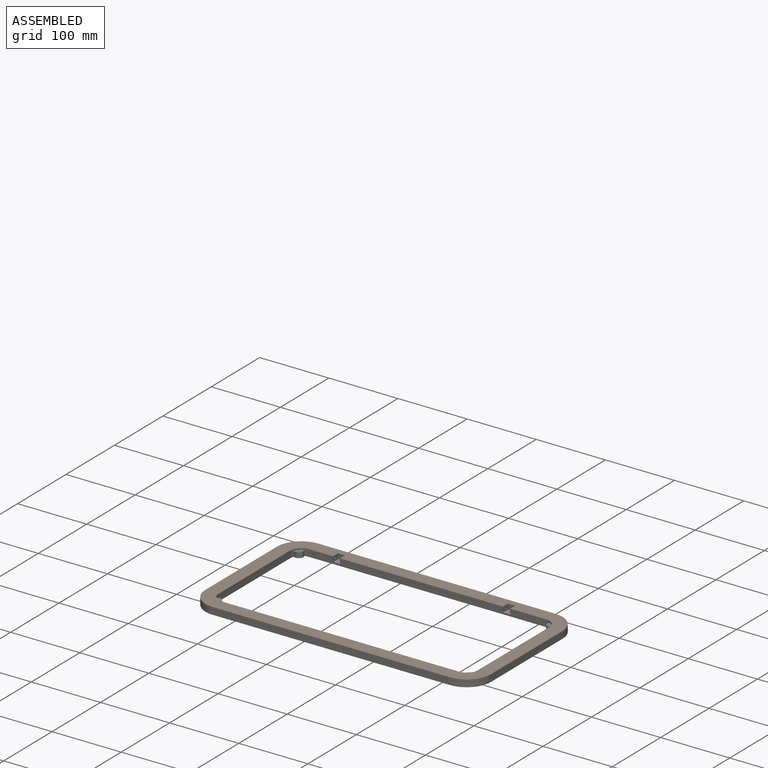
[diagram: assembled view]
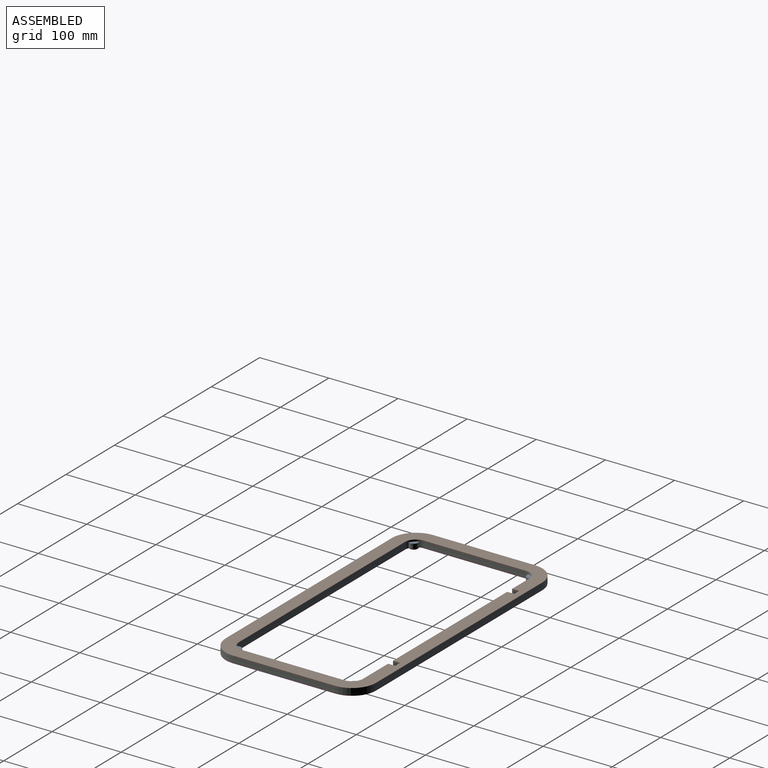
[diagram: assembled view, second angle]
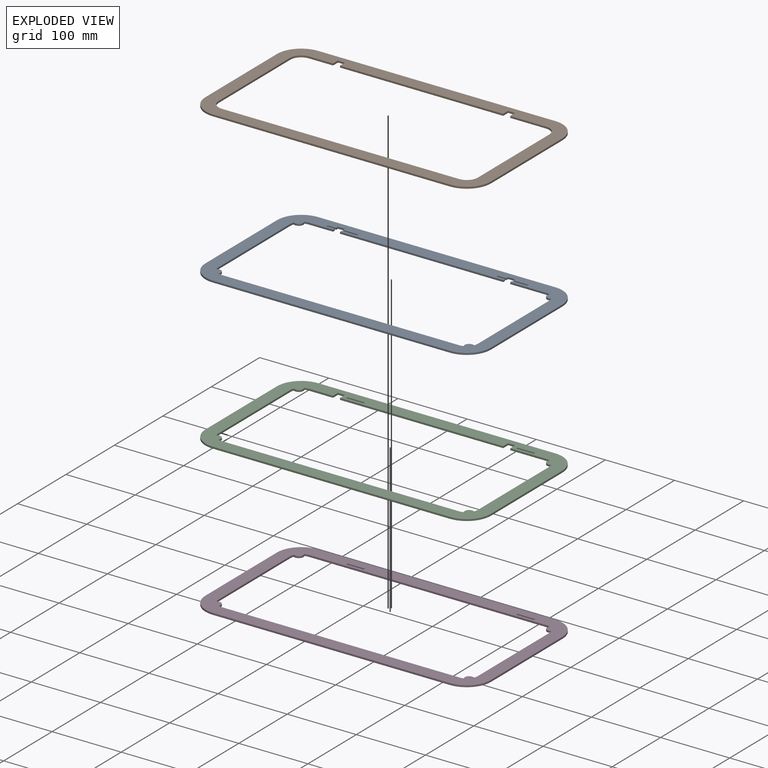
[diagram: exploded view]
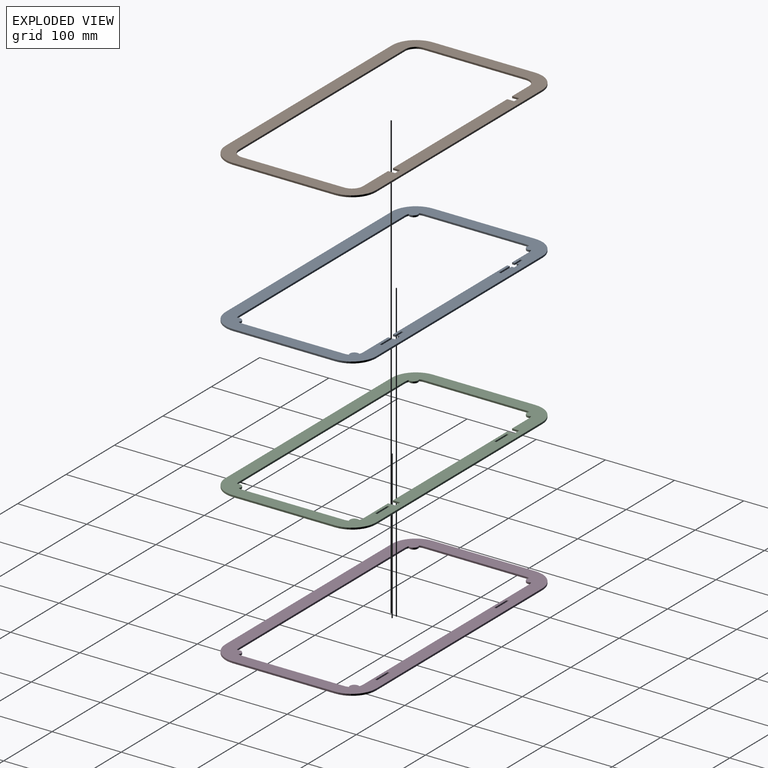
[diagram: exploded view, second angle]
ASSEMBLY  parts=4 mates=3
PART A: 50 faces, bbox 412.8x217.5x2.5 mm
  f0: plane 412.75x217.49mm, normal (0,0,-1), area 21563.4mm2, adj f2,f3,f4,f5,f6,f7,f8,f9
  f1: plane 412.75x217.49mm, normal (0,0,1), area 21563.4mm2, adj f2,f3,f4,f5,f6,f7,f8,f9
  f2: plane 3.68x2.54mm, normal (-1,0,0), area 9.4mm2, adj f0,f1,f12,f47
  f3: plane 3.68x2.54mm, normal (1,0,0), area 9.4mm2, adj f0,f1,f11,f45
  f4: plane 3.68x2.54mm, normal (-1,0,0), area 9.4mm2, adj f0,f1,f11,f41
  f5: plane 3.68x2.54mm, normal (1,0,0), area 9.4mm2, adj f0,f1,f10,f39
  f6: cylinder r=15.88mm len=5.93mm, axis (0,0,-1), area 15.4mm2, adj f0,f1,f16,f37
  f7: cylinder r=15.88mm len=5.93mm, axis (0,0,-1), area 15.4mm2, adj f0,f1,f14,f36
  f8: cylinder r=15.88mm len=5.93mm, axis (0,0,-1), area 15.4mm2, adj f0,f1,f12,f35
  f9: cylinder r=15.88mm len=5.93mm, axis (0,0,-1), area 15.4mm2, adj f0,f1,f18,f34
  f10: plane 34.93x2.54mm, normal (0,-1,0), area 88.7mm2, adj f0,f1,f5,f27
  f11: plane 235.9x2.54mm, normal (0,-1,0), area 599.2mm2, adj f0,f1,f3,f4
  f12: plane 51.75x2.54mm, normal (0,-1,0), area 131.5mm2, adj f0,f1,f2,f8
  f13: cylinder r=15.88mm len=5.93mm, axis (0,0,-1), area 15.4mm2, adj f0,f1,f14,f35
  f14: plane 147.64x2.54mm, normal (-1,0,0), area 375mm2, adj f0,f1,f7,f13
  f15: cylinder r=15.88mm len=5.93mm, axis (0,0,-1), area 15.4mm2, adj f0,f1,f16,f36
  f16: plane 342.9x2.54mm, normal (0,1,0), area 871mm2, adj f0,f1,f6,f15
  f17: cylinder r=15.88mm len=5.93mm, axis (0,0,-1), area 15.4mm2, adj f0,f1,f18,f37
  f18: plane 147.64x2.54mm, normal (1,0,0), area 375mm2, adj f0,f1,f9,f17
  f19: plane 342.9x2.54mm, normal (0,-1,0), area 871mm2, adj f0,f1,f20,f26
  f20: cylinder r=34.92mm len=34.93mm, axis (0,0,-1), area 139.3mm2, adj f0,f1,f19,f21
  f21: plane 147.64x2.54mm, normal (1,0,0), area 375mm2, adj f0,f1,f20,f22
  f22: cylinder r=34.92mm len=34.93mm, axis (0,0,-1), area 139.3mm2, adj f0,f1,f21,f23
  f23: plane 342.9x2.54mm, normal (0,1,0), area 871mm2, adj f0,f1,f22,f24
  f24: cylinder r=34.92mm len=34.93mm, axis (0,0,-1), area 139.3mm2, adj f0,f1,f23,f25
  f25: plane 147.64x2.54mm, normal (-1,0,0), area 375mm2, adj f0,f1,f24,f26
  f26: cylinder r=34.92mm len=34.93mm, axis (0,0,-1), area 139.3mm2, adj f0,f1,f19,f25
  f27: cylinder r=15.88mm len=5.93mm, axis (0,0,-1), area 15.4mm2, adj f0,f1,f10,f34
  f28: plane 3.68x2.54mm, normal (-1,0,0), area 9.4mm2, adj f0,f1,f29,f48
  f29: plane 10.16x2.54mm, normal (0,-1,0), area 25.8mm2, adj f0,f1,f28,f30
  f30: plane 3.68x2.54mm, normal (1,0,0), area 9.4mm2, adj f0,f1,f29,f44
  f31: plane 3.68x2.54mm, normal (-1,0,0), area 9.4mm2, adj f0,f1,f32,f42
  f32: plane 10.16x2.54mm, normal (0,-1,0), area 25.8mm2, adj f0,f1,f31,f33
  f33: plane 3.68x2.54mm, normal (1,0,0), area 9.4mm2, adj f0,f1,f32,f38
  f34: cylinder r=6.35mm len=9.85mm, axis (0,0,1), area 44.2mm2, adj f0,f1,f9,f27
  f35: cylinder r=6.35mm len=9.85mm, axis (0,0,1), area 44.2mm2, adj f0,f1,f8,f13
  f36: cylinder r=6.35mm len=9.85mm, axis (0,0,1), area 44.2mm2, adj f0,f1,f7,f15
  f37: cylinder r=6.35mm len=9.85mm, axis (0,0,1), area 44.2mm2, adj f0,f1,f6,f17
  f38: plane 12.07x2.54mm, normal (0,-1,0), area 30.6mm2, adj f0,f1,f33,f40
  f39: plane 12.07x2.54mm, normal (0,1,0), area 30.6mm2, adj f0,f1,f5,f40
  f40: plane 2.79x2.54mm, normal (1,0,0), area 7.1mm2, adj f0,f1,f38,f39
  f41: plane 22.23x2.54mm, normal (0,1,0), area 56.5mm2, adj f0,f1,f4,f43
  f42: plane 22.23x2.54mm, normal (0,-1,0), area 56.5mm2, adj f0,f1,f31,f43
  f43: plane 2.79x2.54mm, normal (-1,0,0), area 7.1mm2, adj f0,f1,f41,f42
  f44: plane 12.07x2.54mm, normal (0,-1,0), area 30.6mm2, adj f0,f1,f30,f46
  f45: plane 12.07x2.54mm, normal (0,1,0), area 30.6mm2, adj f0,f1,f3,f46
  f46: plane 2.79x2.54mm, normal (1,0,0), area 7.1mm2, adj f0,f1,f44,f45
  f47: plane 22.23x2.54mm, normal (0,1,0), area 56.5mm2, adj f0,f1,f2,f49
  f48: plane 22.23x2.54mm, normal (0,-1,0), area 56.5mm2, adj f0,f1,f28,f49
  f49: plane 2.79x2.54mm, normal (-1,0,0), area 7.1mm2, adj f0,f1,f47,f48
PART B: 26 faces, bbox 412.8x217.5x2.5 mm
  f0: plane 34.93x2.54mm, normal (0,-1,0), area 88.7mm2, adj f2,f18,f19,f25
  f1: plane 235.9x2.54mm, normal (0,-1,0), area 599.2mm2, adj f2,f19,f22,f23
  f2: plane 412.75x217.49mm, normal (0,0,-1), area 21523.3mm2, adj f0,f1,f3,f4,f5,f6,f7,f8
  f3: plane 51.75x2.54mm, normal (0,-1,0), area 131.5mm2, adj f2,f4,f19,f20
  f4: cylinder r=15.88mm len=15.88mm, axis (0,0,-1), area 63.3mm2, adj f2,f3,f5,f19
  f5: plane 147.64x2.54mm, normal (-1,0,0), area 375mm2, adj f2,f4,f6,f19
  f6: cylinder r=15.88mm len=15.88mm, axis (0,0,-1), area 63.3mm2, adj f2,f5,f7,f19
  f7: plane 342.9x2.54mm, normal (0,1,0), area 871mm2, adj f2,f6,f8,f19
  f8: cylinder r=15.88mm len=15.88mm, axis (0,0,-1), area 63.3mm2, adj f2,f7,f9,f19
  f9: plane 147.64x2.54mm, normal (1,0,0), area 375mm2, adj f2,f8,f18,f19
  f10: plane 342.9x2.54mm, normal (0,-1,0), area 871mm2, adj f2,f11,f17,f19
  f11: cylinder r=34.92mm len=34.93mm, axis (0,0,-1), area 139.3mm2, adj f2,f10,f12,f19
  f12: plane 147.64x2.54mm, normal (1,0,0), area 375mm2, adj f2,f11,f13,f19
  f13: cylinder r=34.92mm len=34.93mm, axis (0,0,-1), area 139.3mm2, adj f2,f12,f14,f19
  f14: plane 342.9x2.54mm, normal (0,1,0), area 871mm2, adj f2,f13,f15,f19
  f15: cylinder r=34.92mm len=34.93mm, axis (0,0,-1), area 139.3mm2, adj f2,f14,f16,f19
  f16: plane 147.64x2.54mm, normal (-1,0,0), area 375mm2, adj f2,f15,f17,f19
  f17: cylinder r=34.92mm len=34.93mm, axis (0,0,-1), area 139.3mm2, adj f2,f10,f16,f19
  f18: cylinder r=15.88mm len=15.88mm, axis (0,0,-1), area 63.3mm2, adj f0,f2,f9,f19
  f19: plane 412.75x217.49mm, normal (0,0,1), area 21523.3mm2, adj f0,f1,f3,f4,f5,f6,f7,f8
  f20: plane 10.16x2.54mm, normal (-1,0,0), area 25.8mm2, adj f2,f3,f19,f21
  f21: plane 10.16x2.54mm, normal (0,-1,0), area 25.8mm2, adj f2,f19,f20,f22
  f22: plane 10.16x2.54mm, normal (1,0,0), area 25.8mm2, adj f1,f2,f19,f21
  f23: plane 10.16x2.54mm, normal (-1,0,0), area 25.8mm2, adj f1,f2,f19,f24
  f24: plane 10.16x2.54mm, normal (0,-1,0), area 25.8mm2, adj f2,f19,f23,f25
  f25: plane 10.16x2.54mm, normal (1,0,0), area 25.8mm2, adj f0,f2,f19,f24
PART C: 42 faces, bbox 412.8x217.5x2.5 mm
  f0: plane 412.75x217.49mm, normal (0,0,-1), area 21613.1mm2, adj f2,f3,f4,f5,f6,f7,f8,f9
  f1: plane 412.75x217.49mm, normal (0,0,1), area 21613.1mm2, adj f2,f3,f4,f5,f6,f7,f8,f9
  f2: cylinder r=15.88mm len=5.93mm, axis (0,0,-1), area 15.4mm2, adj f0,f1,f12,f33
  f3: cylinder r=15.88mm len=5.93mm, axis (0,0,-1), area 15.4mm2, adj f0,f1,f10,f32
  f4: cylinder r=15.88mm len=5.93mm, axis (0,0,-1), area 15.4mm2, adj f0,f1,f8,f31
  f5: cylinder r=15.88mm len=5.93mm, axis (0,0,-1), area 15.4mm2, adj f0,f1,f14,f30
  f6: plane 34.93x2.54mm, normal (0,-1,0), area 88.7mm2, adj f0,f1,f23,f29
  f7: plane 235.9x2.54mm, normal (0,-1,0), area 599.2mm2, adj f0,f1,f26,f27
  f8: plane 51.75x2.54mm, normal (0,-1,0), area 131.5mm2, adj f0,f1,f4,f24
  f9: cylinder r=15.88mm len=5.93mm, axis (0,0,-1), area 15.4mm2, adj f0,f1,f10,f31
  f10: plane 147.64x2.54mm, normal (-1,0,0), area 375mm2, adj f0,f1,f3,f9
  f11: cylinder r=15.88mm len=5.93mm, axis (0,0,-1), area 15.4mm2, adj f0,f1,f12,f32
  f12: plane 342.9x2.54mm, normal (0,1,0), area 871mm2, adj f0,f1,f2,f11
  f13: cylinder r=15.88mm len=5.93mm, axis (0,0,-1), area 15.4mm2, adj f0,f1,f14,f33
  f14: plane 147.64x2.54mm, normal (1,0,0), area 375mm2, adj f0,f1,f5,f13
  f15: plane 342.9x2.54mm, normal (0,-1,0), area 871mm2, adj f0,f1,f16,f22
  f16: cylinder r=34.92mm len=34.93mm, axis (0,0,-1), area 139.3mm2, adj f0,f1,f15,f17
  f17: plane 147.64x2.54mm, normal (1,0,0), area 375mm2, adj f0,f1,f16,f18
  f18: cylinder r=34.92mm len=34.93mm, axis (0,0,-1), area 139.3mm2, adj f0,f1,f17,f19
  f19: plane 342.9x2.54mm, normal (0,1,0), area 871mm2, adj f0,f1,f18,f20
  f20: cylinder r=34.92mm len=34.93mm, axis (0,0,-1), area 139.3mm2, adj f0,f1,f19,f21
  f21: plane 147.64x2.54mm, normal (-1,0,0), area 375mm2, adj f0,f1,f20,f22
  f22: cylinder r=34.92mm len=34.93mm, axis (0,0,-1), area 139.3mm2, adj f0,f1,f15,f21
  f23: cylinder r=15.88mm len=5.93mm, axis (0,0,-1), area 15.4mm2, adj f0,f1,f6,f30
  f24: plane 10.16x2.54mm, normal (-1,0,0), area 25.8mm2, adj f0,f1,f8,f25
  f25: plane 10.16x2.54mm, normal (0,-1,0), area 25.8mm2, adj f0,f1,f24,f26
  f26: plane 10.16x2.54mm, normal (1,0,0), area 25.8mm2, adj f0,f1,f7,f25
  f27: plane 10.16x2.54mm, normal (-1,0,0), area 25.8mm2, adj f0,f1,f7,f28
  f28: plane 10.16x2.54mm, normal (0,-1,0), area 25.8mm2, adj f0,f1,f27,f29
  f29: plane 10.16x2.54mm, normal (1,0,0), area 25.8mm2, adj f0,f1,f6,f28
  f30: cylinder r=6.35mm len=9.85mm, axis (0,0,1), area 44.2mm2, adj f0,f1,f5,f23
  f31: cylinder r=6.35mm len=9.85mm, axis (0,0,1), area 44.2mm2, adj f0,f1,f4,f9
  f32: cylinder r=6.35mm len=9.85mm, axis (0,0,1), area 44.2mm2, adj f0,f1,f3,f11
  f33: cylinder r=6.35mm len=9.85mm, axis (0,0,1), area 44.2mm2, adj f0,f1,f2,f13
  f34: plane 25.4x2.54mm, normal (0,1,0), area 64.5mm2, adj f0,f1,f35,f37
  f35: plane 2.79x2.54mm, normal (-1,0,0), area 7.1mm2, adj f0,f1,f34,f36
  f36: plane 25.4x2.54mm, normal (0,-1,0), area 64.5mm2, adj f0,f1,f35,f37
  f37: plane 2.79x2.54mm, normal (1,0,0), area 7.1mm2, adj f0,f1,f34,f36
  f38: plane 25.4x2.54mm, normal (0,1,0), area 64.5mm2, adj f0,f1,f39,f41
  f39: plane 2.79x2.54mm, normal (-1,0,0), area 7.1mm2, adj f0,f1,f38,f40
  f40: plane 25.4x2.54mm, normal (0,-1,0), area 64.5mm2, adj f0,f1,f39,f41
  f41: plane 2.79x2.54mm, normal (1,0,0), area 7.1mm2, adj f0,f1,f38,f40
PART D: 34 faces, bbox 412.8x217.5x2.5 mm
  f0: plane 412.75x217.49mm, normal (0,0,1), area 21819.6mm2, adj f2,f3,f4,f5,f6,f7,f8,f9
  f1: plane 412.75x217.49mm, normal (0,0,-1), area 21819.6mm2, adj f2,f3,f4,f5,f6,f7,f8,f9
  f2: cylinder r=15.88mm len=5.93mm, axis (0,0,-1), area 15.4mm2, adj f0,f1,f10,f25
  f3: cylinder r=15.88mm len=5.93mm, axis (0,0,-1), area 15.4mm2, adj f0,f1,f8,f24
  f4: cylinder r=15.88mm len=5.93mm, axis (0,0,-1), area 15.4mm2, adj f0,f1,f6,f23
  f5: cylinder r=15.88mm len=5.93mm, axis (0,0,-1), area 15.4mm2, adj f0,f1,f12,f22
  f6: plane 342.9x2.54mm, normal (0,-1,0), area 871mm2, adj f0,f1,f4,f21
  f7: cylinder r=15.88mm len=5.93mm, axis (0,0,-1), area 15.4mm2, adj f0,f1,f8,f23
  f8: plane 147.64x2.54mm, normal (-1,0,0), area 375mm2, adj f0,f1,f3,f7
  f9: cylinder r=15.88mm len=5.93mm, axis (0,0,-1), area 15.4mm2, adj f0,f1,f10,f24
  f10: plane 342.9x2.54mm, normal (0,1,0), area 871mm2, adj f0,f1,f2,f9
  f11: cylinder r=15.88mm len=5.93mm, axis (0,0,-1), area 15.4mm2, adj f0,f1,f12,f25
  f12: plane 147.64x2.54mm, normal (1,0,0), area 375mm2, adj f0,f1,f5,f11
  f13: plane 342.9x2.54mm, normal (0,-1,0), area 871mm2, adj f0,f1,f14,f20
  f14: cylinder r=34.92mm len=34.93mm, axis (0,0,-1), area 139.3mm2, adj f0,f1,f13,f15
  f15: plane 147.64x2.54mm, normal (1,0,0), area 375mm2, adj f0,f1,f14,f16
  f16: cylinder r=34.92mm len=34.93mm, axis (0,0,-1), area 139.3mm2, adj f0,f1,f15,f17
  f17: plane 342.9x2.54mm, normal (0,1,0), area 871mm2, adj f0,f1,f16,f18
  f18: cylinder r=34.92mm len=34.93mm, axis (0,0,-1), area 139.3mm2, adj f0,f1,f17,f19
  f19: plane 147.64x2.54mm, normal (-1,0,0), area 375mm2, adj f0,f1,f18,f20
  f20: cylinder r=34.92mm len=34.93mm, axis (0,0,-1), area 139.3mm2, adj f0,f1,f13,f19
  f21: cylinder r=15.88mm len=5.93mm, axis (0,0,-1), area 15.4mm2, adj f0,f1,f6,f22
  f22: cylinder r=6.35mm len=9.85mm, axis (0,0,1), area 44.2mm2, adj f0,f1,f5,f21
  f23: cylinder r=6.35mm len=9.85mm, axis (0,0,1), area 44.2mm2, adj f0,f1,f4,f7
  f24: cylinder r=6.35mm len=9.85mm, axis (0,0,1), area 44.2mm2, adj f0,f1,f3,f9
  f25: cylinder r=6.35mm len=9.85mm, axis (0,0,1), area 44.2mm2, adj f0,f1,f2,f11
  f26: plane 25.4x2.54mm, normal (0,1,0), area 64.5mm2, adj f0,f1,f27,f29
  f27: plane 2.79x2.54mm, normal (-1,0,0), area 7.1mm2, adj f0,f1,f26,f28
  f28: plane 25.4x2.54mm, normal (0,-1,0), area 64.5mm2, adj f0,f1,f27,f29
  f29: plane 2.79x2.54mm, normal (1,0,0), area 7.1mm2, adj f0,f1,f26,f28
  f30: plane 25.4x2.54mm, normal (0,1,0), area 64.5mm2, adj f0,f1,f31,f33
  f31: plane 2.79x2.54mm, normal (-1,0,0), area 7.1mm2, adj f0,f1,f30,f32
  f32: plane 25.4x2.54mm, normal (0,-1,0), area 64.5mm2, adj f0,f1,f31,f33
  f33: plane 2.79x2.54mm, normal (1,0,0), area 7.1mm2, adj f0,f1,f30,f32
PLACE A t=(0,0,-2.54)mm
PLACE B at identity fixed
PLACE C t=(0,0,-5.08)mm
PLACE D t=(0,0,-7.62)mm
MATE fastened A.f9 <-> C.f5  axis (0,0,-1) through (-171.45,73.82,-2.54)mm
MATE fastened A.f9 <-> B.f15  axis (0,0,1) through (-171.45,73.82,0)mm
MATE fastened C.f5 <-> D.f5  axis (0,0,-1) through (-171.45,73.82,-5.08)mm
